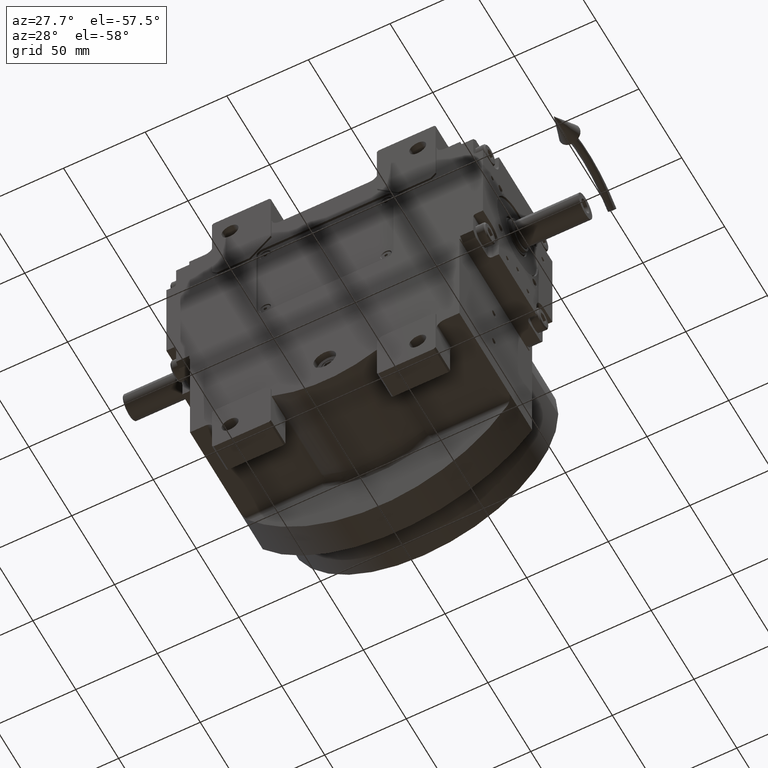
[diagram: clean part render]
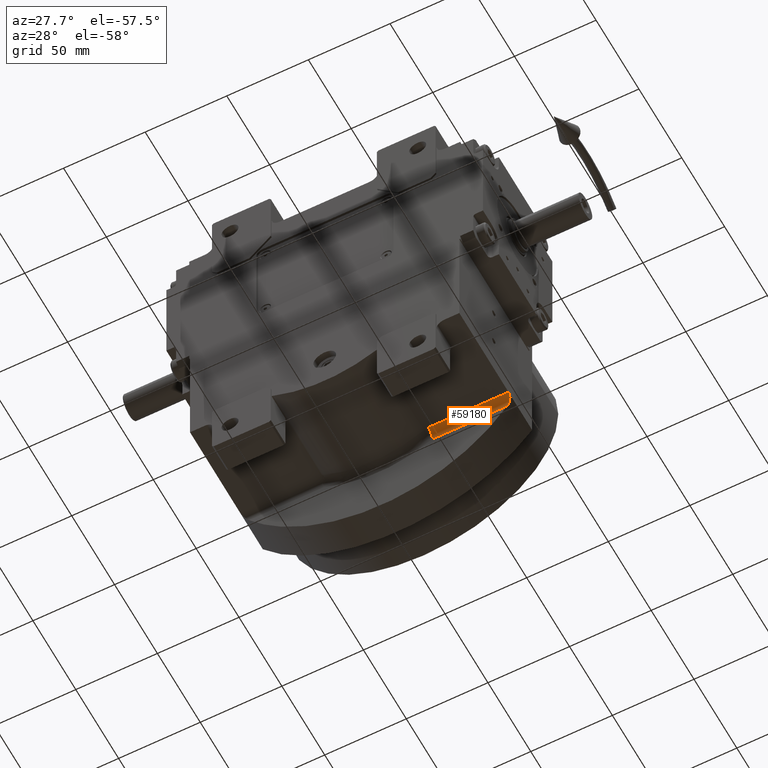
[diagram: same view with one face highlighted and labeled with its STEP entity id]
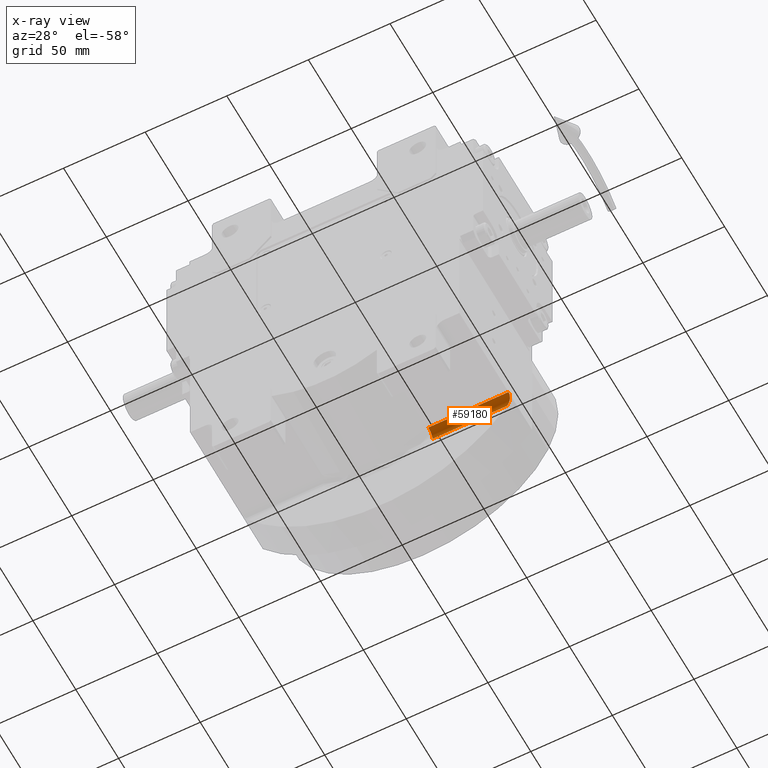
[diagram: x-ray of the same camera — body ghosted, the highlighted face saturated]
A machine part, auxiliary view. The second image highlights one B-rep face of the part: STEP entity #59180.
The next image is the same camera in x-ray: the body ghosted, the highlighted face saturated — about 0% of this face is hidden behind the body in this view.
In plain terms, the highlighted cylindrical surface (edge-blend (fillet) strip) has radius 5 mm, axis along (1, -0, 0).
Its self-contained STEP definition (entity closure, byte-faithful):
#1308 = CARTESIAN_POINT ( 'NONE',  ( 80.80307844551603580, 21.13584355563558859, -60.81028530005812627 ) ) ;
#1597 = CARTESIAN_POINT ( 'NONE',  ( 82.50000025238179546, 16.91834884610074852, -58.49999999999619860 ) ) ;
#2805 = DIRECTION ( 'NONE',  ( -1.000000000000000000, 0.000000000000000000, 0.000000000000000000 ) ) ;
#4412 = AXIS2_PLACEMENT_3D ( 'NONE', #9555, #63209, #25043 ) ;
#4881 = CARTESIAN_POINT ( 'NONE',  ( 82.47216222466504121, 17.61681362791584959, -58.53908532207057647 ) ) ;
#5195 = CARTESIAN_POINT ( 'NONE',  ( 82.10664358165148258, 19.21751729846226908, -59.04803310326353483 ) ) ;
#5830 = CARTESIAN_POINT ( 'NONE',  ( 80.66064590096455333, 21.25152399031778572, -60.99827955324605000 ) ) ;
#9133 = CARTESIAN_POINT ( 'NONE',  ( 82.99083947433459230, 16.91834412991290293, -63.50000000000000000 ) ) ;
#9555 = CARTESIAN_POINT ( 'NONE',  ( 33.32502204292480741, 16.91834412991290293, -63.50000000000000000 ) ) ;
#10992 = CARTESIAN_POINT ( 'NONE',  ( 81.24827234366316020, 20.70210223939763949, -60.21774392360881478 ) ) ;
#11110 = CARTESIAN_POINT ( 'NONE',  ( 79.04714209825419857, 21.89931762037159757, -63.06422128626171286 ) ) ;
#12844 = VECTOR ( 'NONE', #44101, 1000.000000000000000 ) ;
#14888 = CARTESIAN_POINT ( 'NONE',  ( 82.24764895165553469, 18.76203942189971130, -58.85232920322380323 ) ) ;
#15850 = CARTESIAN_POINT ( 'NONE',  ( 81.79538902022255797, 19.89184377910962453, -59.47600692098502861 ) ) ;
#15859 = EDGE_LOOP ( 'NONE', ( #63531, #28116, #33644, #35572 ) ) ;
#16149 = CARTESIAN_POINT ( 'NONE',  ( 80.35715927420012861, 21.45313174725534822, -61.39507691378408794 ) ) ;
#16276 = CARTESIAN_POINT ( 'NONE',  ( 33.32502203102834670, 21.89931739189994886, -63.06422130460889974 ) ) ;
#20048 = CARTESIAN_POINT ( 'NONE',  ( 82.36648109135089157, 18.28109137298823939, -58.68684616786029551 ) ) ;
#23662 = CYLINDRICAL_SURFACE ( 'NONE', #29174, 4.999999999999997335 ) ;
#24249 = EDGE_CURVE ( 'NONE', #27426, #30597, #27347, .T. ) ;
#24575 = CARTESIAN_POINT ( 'NONE',  ( 82.39740260651255710, 18.11699453785075065, -58.64364359043779018 ) ) ;
#25043 = DIRECTION ( 'NONE',  ( -8.649539418037481525E-10, 2.308778168647053391E-11, 1.000000000000000000 ) ) ;
#26171 = CARTESIAN_POINT ( 'NONE',  ( 80.48570218483004624, 21.37244370281862516, -61.22743844595007801 ) ) ;
#26478 = CARTESIAN_POINT ( 'NONE',  ( 79.04714209825419857, 21.89931762037159757, -63.06422128626171286 ) ) ;
#27347 = LINE ( 'NONE', #47065, #36274 ) ;
#27426 = VERTEX_POINT ( 'NONE', #1597 ) ;
#28116 = ORIENTED_EDGE ( 'NONE', *, *, #24249, .T. ) ;
#28451 = VERTEX_POINT ( 'NONE', #16276 ) ;
#28828 = DIRECTION ( 'NONE',  ( 0.000000000000000000, 0.000000000000000000, 1.000000000000000000 ) ) ;
#29174 = AXIS2_PLACEMENT_3D ( 'NONE', #9133, #43379, #28828 ) ;
#30371 = CARTESIAN_POINT ( 'NONE',  ( 81.68887476796761860, 20.08202592194644254, -59.62156687700097990 ) ) ;
#30597 = VERTEX_POINT ( 'NONE', #61768 ) ;
#33644 = ORIENTED_EDGE ( 'NONE', *, *, #39809, .T. ) ;
#33686 = FACE_OUTER_BOUND ( 'NONE', #15859, .T. ) ;
#34270 = CARTESIAN_POINT ( 'NONE',  ( 82.49801068936248782, 17.27283914859599534, -58.50279000820314224 ) ) ;
#34593 = CARTESIAN_POINT ( 'NONE',  ( 82.21217926006283960, 18.88176157855128423, -58.90159697903771274 ) ) ;
#35546 = CARTESIAN_POINT ( 'NONE',  ( 79.48504137600836827, 21.85553085867646672, -62.51814280813015756 ) ) ;
#35572 = ORIENTED_EDGE ( 'NONE', *, *, #58796, .F. ) ;
#35850 = CARTESIAN_POINT ( 'NONE',  ( 81.07808203326490570, 20.88843606383877471, -60.44566448122529323 ) ) ;
#36274 = VECTOR ( 'NONE', #2805, 1000.000000000000000 ) ;
#36806 = B_SPLINE_CURVE_WITH_KNOTS ( 'NONE', 3,
 ( #58846, #34270, #4881, #24575, #20048, #39441, #49448, #14888, #59490, #34593, #5195, #39763, #15850, #30371, #50098, #41013, #50734, #41339, #45559, #10992, #35850, #1308, #5830, #26171, #56234, #16149, #51360, #45886, #35546, #26478 ),
 .UNSPECIFIED., .F., .F.,
 ( 4, 2, 2, 1, 2, 2, 2, 1, 1, 1, 2, 2, 2, 1, 1, 2, 2, 4 ),
 ( 0.000000000000000000, 0.1250000000000039413, 0.1875000000000050515, 0.2187500000000046907, 0.2343750000000050793, 0.2500000000000054401, 0.3750000000000134337, 0.4375000000000182632, 0.4687500000000195399, 0.4843750000000202061, 0.4921875000000190958, 0.5000000000000179856, 0.6250000000000182077, 0.6875000000000158762, 0.7187500000000133227, 0.7343750000000105471, 0.7500000000000076605, 1.000000000000000000 ),
 .UNSPECIFIED. ) ;
#38004 = CARTESIAN_POINT ( 'NONE',  ( 79.04714209825419857, 21.89931762037159757, -63.06422128626171286 ) ) ;
#39441 = CARTESIAN_POINT ( 'NONE',  ( 82.31103723514804926, 18.52329142343325330, -58.76413230345031025 ) ) ;
#39763 = CARTESIAN_POINT ( 'NONE',  ( 81.99381687280965991, 19.49801749192775802, -59.20396003289062037 ) ) ;
#39809 = EDGE_CURVE ( 'NONE', #30597, #28451, #60133, .T. ) ;
#41013 = CARTESIAN_POINT ( 'NONE',  ( 81.47977728701506805, 20.39423098210145824, -59.90524830952410440 ) ) ;
#41339 = CARTESIAN_POINT ( 'NONE',  ( 81.42711121235259952, 20.46597128035962854, -59.97641659382209411 ) ) ;
#43379 = DIRECTION ( 'NONE',  ( 1.000000000000000000, -7.088972696686209220E-17, 0.000000000000000000 ) ) ;
#44101 = DIRECTION ( 'NONE',  ( -1.000000000000000000, 0.000000000000000000, -1.554045907601589977E-16 ) ) ;
#45559 = CARTESIAN_POINT ( 'NONE',  ( 81.41555652887343797, 20.48138983581629446, -59.99201618544422843 ) ) ;
#45886 = CARTESIAN_POINT ( 'NONE',  ( 79.90397011453018195, 21.71709261374167710, -61.98413747915883931 ) ) ;
#47065 = CARTESIAN_POINT ( 'NONE',  ( 82.50000000000000000, 16.91834412991290293, -58.50000000000000000 ) ) ;
#49448 = CARTESIAN_POINT ( 'NONE',  ( 82.28104955507662055, 18.64340514809044080, -58.80589567971785669 ) ) ;
#50098 = CARTESIAN_POINT ( 'NONE',  ( 81.55165246565790937, 20.29212583726973662, -59.80794136754331447 ) ) ;
#50734 = CARTESIAN_POINT ( 'NONE',  ( 81.44827145435971261, 20.43735929856577727, -59.94783199448234967 ) ) ;
#51360 = CARTESIAN_POINT ( 'NONE',  ( 80.32990774113041255, 21.46943477755629104, -61.43054108537118196 ) ) ;
#53528 = EDGE_CURVE ( 'NONE', #27426, #54145, #36806, .T. ) ;
#54145 = VERTEX_POINT ( 'NONE', #38004 ) ;
#56234 = CARTESIAN_POINT ( 'NONE',  ( 80.40883032657372098, 21.42125769504145794, -61.32774323446309239 ) ) ;
#58796 = EDGE_CURVE ( 'NONE', #54145, #28451, #59302, .T. ) ;
#58846 = CARTESIAN_POINT ( 'NONE',  ( 82.50000025238179546, 16.91834884610074852, -58.49999999999619860 ) ) ;
#59180 = ADVANCED_FACE ( 'NONE', ( #33686 ), #23662, .F. ) ;
#59302 = LINE ( 'NONE', #11110, #12844 ) ;
#59490 = CARTESIAN_POINT ( 'NONE',  ( 82.22462164581631328, 18.84080017091743642, -58.88432138606643917 ) ) ;
#60133 = CIRCLE ( 'NONE', #4412, 4.999999999999997335 ) ;
#61768 = CARTESIAN_POINT ( 'NONE',  ( 33.32502203356354897, 16.91834412994175096, -58.50000000000000000 ) ) ;
#63209 = DIRECTION ( 'NONE',  ( -1.000000000000000000, -2.140770974296564927E-09, -8.649536197896450671E-10 ) ) ;
#63531 = ORIENTED_EDGE ( 'NONE', *, *, #53528, .F. ) ;